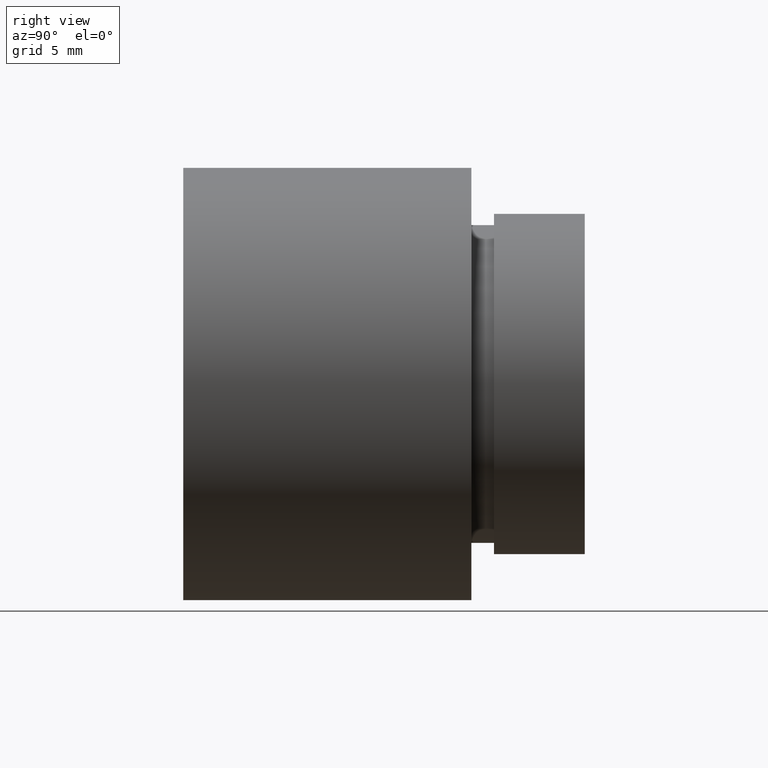
[diagram: clean part render]
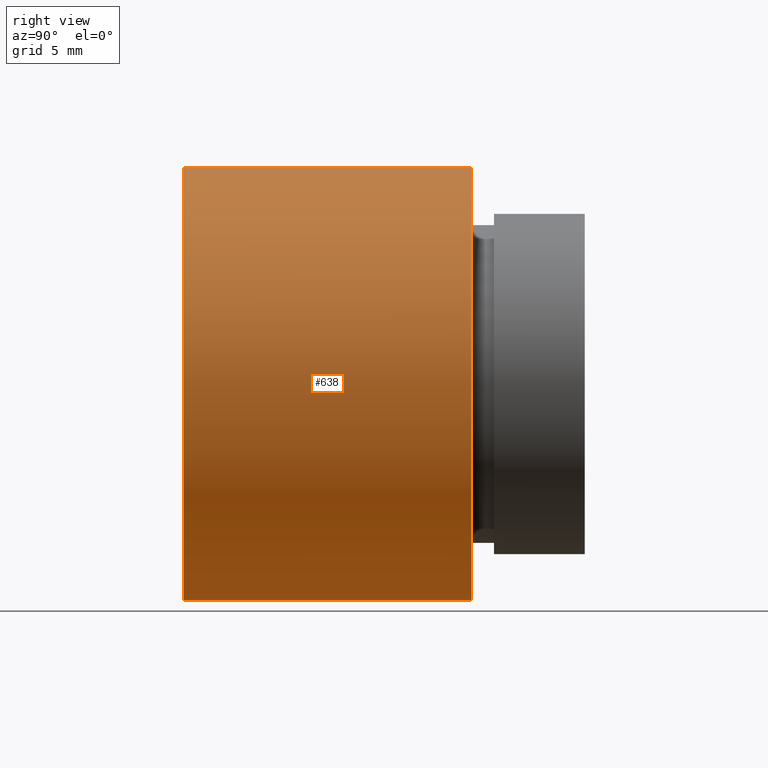
[diagram: same view with one face highlighted and labeled with its STEP entity id]
A machine part, right view. The second image highlights one B-rep face of the part: STEP entity #638.
In plain terms, the highlighted cylindrical surface (partial cylindrical patch) has radius 9.525 mm, axis along (-0, 1, -0).
Its self-contained STEP definition (entity closure, byte-faithful):
#15 = CIRCLE ( 'NONE', #250, 9.525000000000019895 ) ;
#26 = AXIS2_PLACEMENT_3D ( 'NONE', #45, #258, #487 ) ;
#43 = DIRECTION ( 'NONE',  ( 0.000000000000000000, 0.000000000000000000, 1.000000000000000000 ) ) ;
#45 = CARTESIAN_POINT ( 'NONE',  ( 0.000000000000000000, 161.3761669434274495, 0.000000000000000000 ) ) ;
#46 = CARTESIAN_POINT ( 'NONE',  ( 0.000000000000000000, -2.775557561562891351E-14, 0.000000000000000000 ) ) ;
#85 = AXIS2_PLACEMENT_3D ( 'NONE', #694, #408, #577 ) ;
#141 = CARTESIAN_POINT ( 'NONE',  ( 0.000000000000000000, 12.69999999999998863, 9.525000000000019895 ) ) ;
#168 = EDGE_CURVE ( 'NONE', #177, #293, #15, .T. ) ;
#177 = VERTEX_POINT ( 'NONE', #198 ) ;
#198 = CARTESIAN_POINT ( 'NONE',  ( 0.000000000000000000, -2.775557561562891351E-14, 9.525000000000019895 ) ) ;
#206 = ORIENTED_EDGE ( 'NONE', *, *, #283, .F. ) ;
#250 = AXIS2_PLACEMENT_3D ( 'NONE', #46, #546, #43 ) ;
#258 = DIRECTION ( 'NONE',  ( -0.000000000000000000, 1.000000000000000000, -0.000000000000000000 ) ) ;
#276 = DIRECTION ( 'NONE',  ( -0.000000000000000000, 1.000000000000000000, -0.000000000000000000 ) ) ;
#283 = EDGE_CURVE ( 'NONE', #177, #633, #565, .T. ) ;
#293 = VERTEX_POINT ( 'NONE', #446 ) ;
#316 = FACE_OUTER_BOUND ( 'NONE', #718, .T. ) ;
#331 = VECTOR ( 'NONE', #594, 1000.000000000000000 ) ;
#339 = CARTESIAN_POINT ( 'NONE',  ( 1.166476076187856388E-15, 12.69999999999998863, -9.525000000000019895 ) ) ;
#358 = CARTESIAN_POINT ( 'NONE',  ( 1.166476076187856388E-15, 161.3761669434274495, -9.525000000000019895 ) ) ;
#408 = DIRECTION ( 'NONE',  ( -0.000000000000000000, 1.000000000000000000, -0.000000000000000000 ) ) ;
#423 = ORIENTED_EDGE ( 'NONE', *, *, #168, .T. ) ;
#429 = LINE ( 'NONE', #358, #331 ) ;
#431 = VECTOR ( 'NONE', #276, 1000.000000000000000 ) ;
#446 = CARTESIAN_POINT ( 'NONE',  ( 1.166476076187856388E-15, -2.775557561562891351E-14, -9.525000000000019895 ) ) ;
#487 = DIRECTION ( 'NONE',  ( 0.000000000000000000, 0.000000000000000000, 1.000000000000000000 ) ) ;
#526 = ORIENTED_EDGE ( 'NONE', *, *, #636, .T. ) ;
#545 = VERTEX_POINT ( 'NONE', #339 ) ;
#546 = DIRECTION ( 'NONE',  ( -0.000000000000000000, 1.000000000000000000, -0.000000000000000000 ) ) ;
#547 = EDGE_CURVE ( 'NONE', #633, #545, #702, .T. ) ;
#548 = CYLINDRICAL_SURFACE ( 'NONE', #26, 9.525000000000019895 ) ;
#565 = LINE ( 'NONE', #674, #431 ) ;
#577 = DIRECTION ( 'NONE',  ( 0.000000000000000000, 0.000000000000000000, 1.000000000000000000 ) ) ;
#594 = DIRECTION ( 'NONE',  ( -0.000000000000000000, 1.000000000000000000, -0.000000000000000000 ) ) ;
#633 = VERTEX_POINT ( 'NONE', #141 ) ;
#636 = EDGE_CURVE ( 'NONE', #293, #545, #429, .T. ) ;
#638 = ADVANCED_FACE ( 'NONE', ( #316 ), #548, .T. ) ;
#674 = CARTESIAN_POINT ( 'NONE',  ( 0.000000000000000000, 161.3761669434274495, 9.525000000000019895 ) ) ;
#694 = CARTESIAN_POINT ( 'NONE',  ( 0.000000000000000000, 12.69999999999998863, 0.000000000000000000 ) ) ;
#700 = ORIENTED_EDGE ( 'NONE', *, *, #547, .F. ) ;
#702 = CIRCLE ( 'NONE', #85, 9.525000000000019895 ) ;
#718 = EDGE_LOOP ( 'NONE', ( #423, #526, #700, #206 ) ) ;